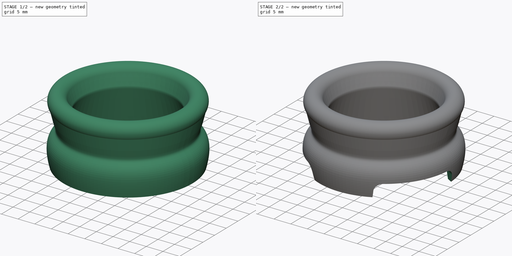
[diagram: build sequence overview — one tinted view per stage of 2, left to right]
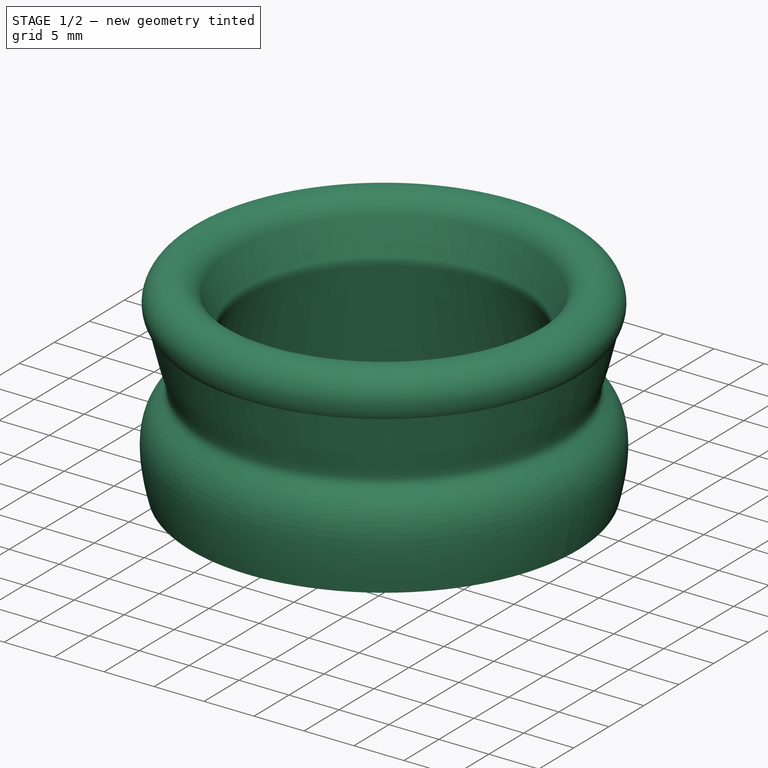
[diagram: stage 1 of 2 — iso view after this stage's code; geometry added in this stage tinted green]
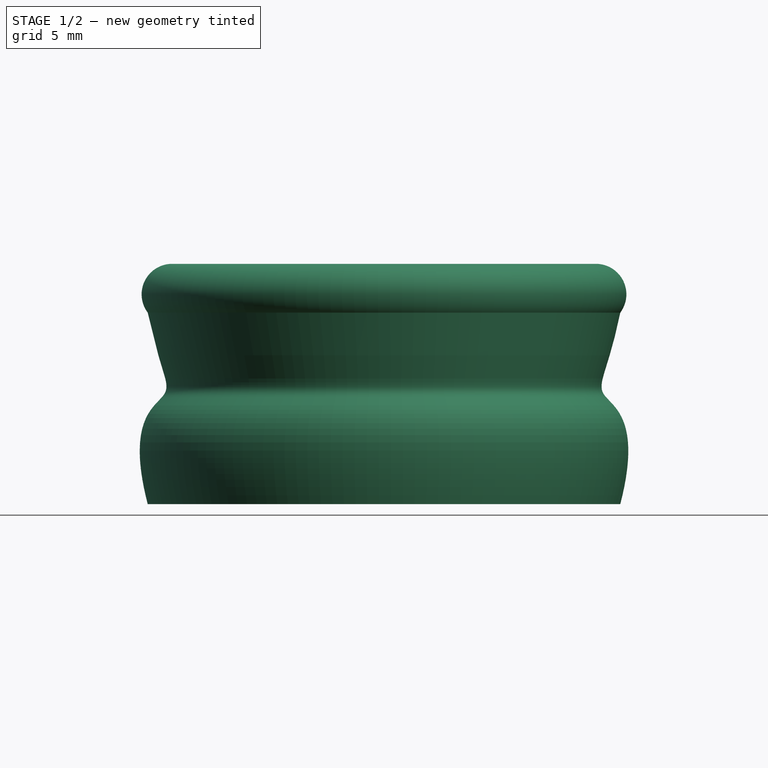
[diagram: stage 1 of 2 — front view after this stage's code; geometry added in this stage tinted green]
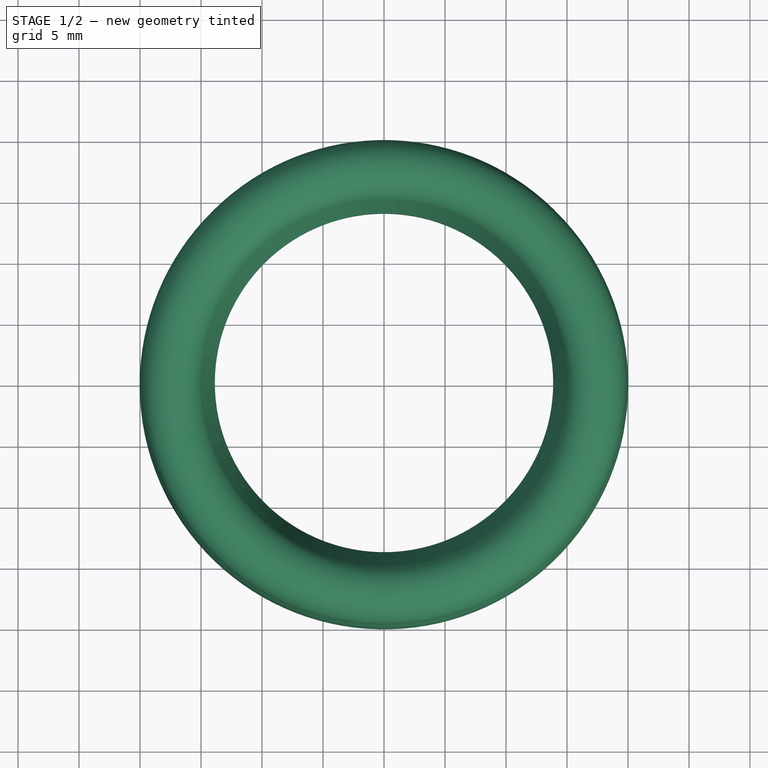
[diagram: stage 1 of 2 — top view after this stage's code; geometry added in this stage tinted green]
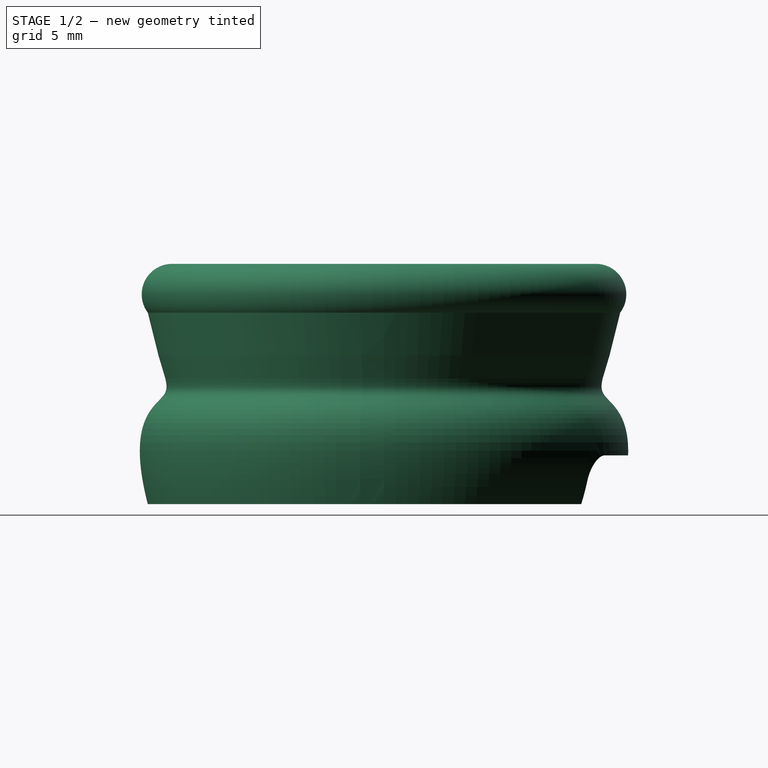
[diagram: stage 1 of 2 — right view after this stage's code; geometry added in this stage tinted green]
FCSTD DOCUMENT  (FreeCAD 0.20R27319 (Git))
Label: Egg Stand
License: All rights reserved
LicenseURL: http://en.wikipedia.org/wiki/All_rights_reserved
objects: Sketcher::SketchObject×2, PartDesign::Revolution×1, PartDesign::Pocket×1, PartDesign::PolarPattern×1, PartDesign::Body×1
note: 8 computed .brp shape members not serialized (recipe doc carries the construction recipe); baked Part::Feature solids carry a one-line shape summary decoded from their .brp

FEATURE [Sketcher::SketchObject] Sketch
  FullyConstrained = false
  MapMode = 5
  Placement = pos=(0,0,0) rot=(1,0,0;1.5708rad)
  Support = -> [XZ_Plane]
  expr: Constraints[22] = .Constraints.Height * 0.8
  sketch-geometry (14):
    g0: LineSegment StartX=13.9476 StartY=14.8793 StartZ=0 EndX=15 EndY=18 EndZ=0
    g1: ArcOfCircle CenterX=17.3689 CenterY=17.2011 CenterZ=0 NormalX=0 NormalY=0 NormalZ=1 AngleXU=0 Radius=2.5 StartAngle=5.63968 EndAngle=9.09951
    g2: LineSegment StartX=17.8689 StartY=0 StartZ=0 EndX=19.3689 EndY=0 EndZ=0
    g3-g7: Circle x5 (B-spline internal-alignment scaffolding for g8; pole/knot coordinates omitted)
    g8: BSplineCurve PolesCount=5 KnotsCount=3 Degree=3 IsPeriodic=0
    g9: GeomPoint X=19.3689 Y=15.7011 Z=0
    g10: GeomPoint X=18.0689 Y=8.93909 Z=0
    g11: GeomPoint X=19.3689 Y=0 Z=0
    g12: LineSegment StartX=13.9252 StartY=13.9931 StartZ=0 EndX=17.8689 EndY=0 EndZ=0
    g13: ArcOfCircle CenterX=15.3689 CenterY=14.4 CenterZ=0 NormalX=0 NormalY=0 NormalZ=1 AngleXU=0 Radius=1.5 StartAngle=2.81632 EndAngle=3.4163
  constraints (27):
    c: PointOnObject(g2,g-1)
    c: Tangent(g0,g1) = 1.5708
    c: Vertical(g1,g2)
    c: Coincident(g8,g1)
    c: Weight(g3) = 1
    c: Equal(g3, g4-g7) x4
    c: Coincident(g8,g2)
    c: InternalAlignment(g3-g7 -> g8) x5
    c: InternalAlignment(g9,g8)
    c: InternalAlignment(g10,g8)
    c: InternalAlignment(g11,g8)
    c: Coincident(g12,g2)
    c: Tangent(g13,g0) = 1.5708
    c: Tangent(g13,g12) = -1.5708
    c: DistanceY(g-1,g0) = 18  'Height'
    c: DistanceY(g13) = 14.4
    c: Horizontal(g2)
    c: Radius(g13) = 1.5
    c: Radius(g1) = 2.5
    c: DistanceX(g13,g1) = 2
    c: DistanceX(g13,g2) = 2.5
    c: Distance(g2) = 1.5
    c: DistanceY(g2,g5) = 9
    c: DistanceX(g4,g1) = 1
    c: DistanceX(g5,g1) = 3
    c: DistanceX(g1,g6) = 1.8
    c: DistanceX(g0) = 15
FEATURE [PartDesign::Revolution] Revolution
  Angle = 360
  Axis = (0,2e-16,1)
  Base = (0,0,0)
  Placement = pos=(0,0,0) rot=(1,0,0;1.5708rad)
  Profile = -> Sketch
  ReferenceAxis = -> Sketch [V_Axis]
  Reversed = true
FEATURE [Sketcher::SketchObject] Sketch001
  FullyConstrained = false
  MapMode = 5
  Placement = pos=(0,0,0) rot=(1,0,0;1.5708rad)
  Support = -> [XZ_Plane]
  sketch-geometry (9):
    g0: LineSegment StartX=-10.6683 StartY=1.88581 StartZ=0 EndX=-10.6683 EndY=0 EndZ=0
    g1: LineSegment StartX=-10.6683 StartY=0 StartZ=0 EndX=10.6683 EndY=0 EndZ=0
    g2: LineSegment StartX=10.6683 StartY=0 StartZ=0 EndX=10.6683 EndY=1.88581 EndZ=0
    g3: LineSegment StartX=8.55407 StartY=4 StartZ=0 EndX=-8.55407 EndY=4 EndZ=0
    g4: GeomPoint X=0 Y=2 Z=0
    g5: ArcOfCircle CenterX=-8.55407 CenterY=1.88581 CenterZ=0 NormalX=0 NormalY=0 NormalZ=1 AngleXU=0 Radius=2.11419 StartAngle=1.5708 EndAngle=3.14159
    g6: GeomPoint X=-10.6683 Y=4 Z=0
    g7: ArcOfCircle CenterX=8.55407 CenterY=1.88581 CenterZ=0 NormalX=0 NormalY=0 NormalZ=1 AngleXU=0 Radius=2.11419 StartAngle=0 EndAngle=1.5708
    g8: GeomPoint X=10.6683 Y=4 Z=0
  constraints (19):
    c: Coincident(g0,g1)
    c: Coincident(g1,g2)
    c: Horizontal(g1)
    c: Horizontal(g3)
    c: Vertical(g0)
    c: Vertical(g2)
    c: Symmetric(g1,g6,g4)
    c: PointOnObject(g4,g-2)
    c: PointOnObject(g1,g-1)
    c: Distance(g0,g6) = 4
    c: PointOnObject(g6,g0)
    c: PointOnObject(g6,g3)
    c: Tangent(g0,g5) = -1.5708
    c: Tangent(g3,g5) = -1.5708
    c: PointOnObject(g8,g2)
    c: PointOnObject(g8,g3)
    c: Tangent(g2,g7) = -1.5708
    c: Tangent(g3,g7) = -1.5708
    c: Equal(g5,g7)
FEATURE [PartDesign::Pocket] Pocket
  BaseFeature = -> Revolution
  Direction = (0,1,-2e-16)
  Length = 5
  Length2 = 5
  Placement = pos=(0,0,0) rot=(1,0,0;1.5708rad)
  Profile = -> Sketch001
  ReferenceAxis = -> Sketch001 [N_Axis]
  Type = 1
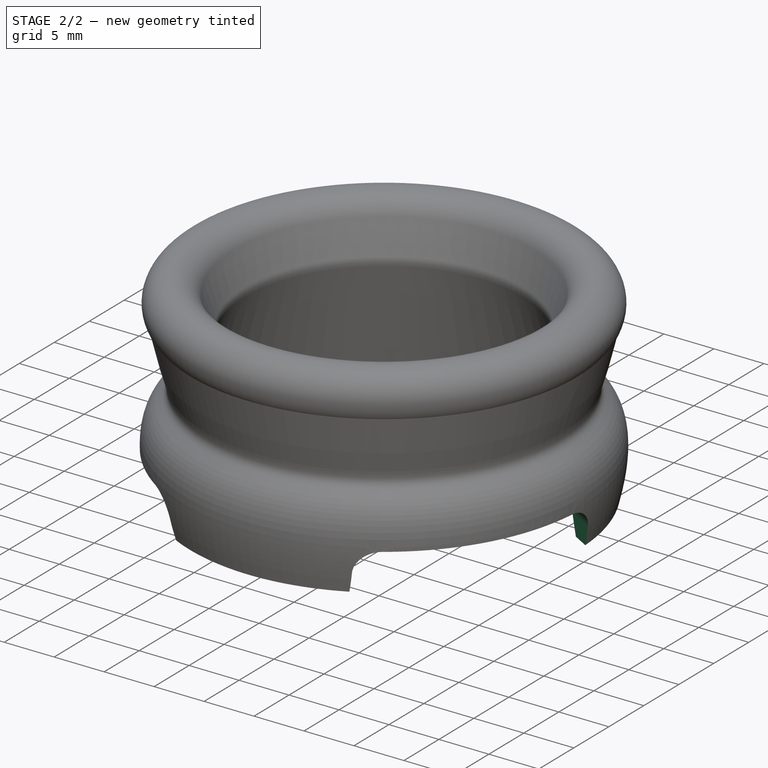
[diagram: stage 2 of 2 — iso view after this stage's code; geometry added in this stage tinted green]
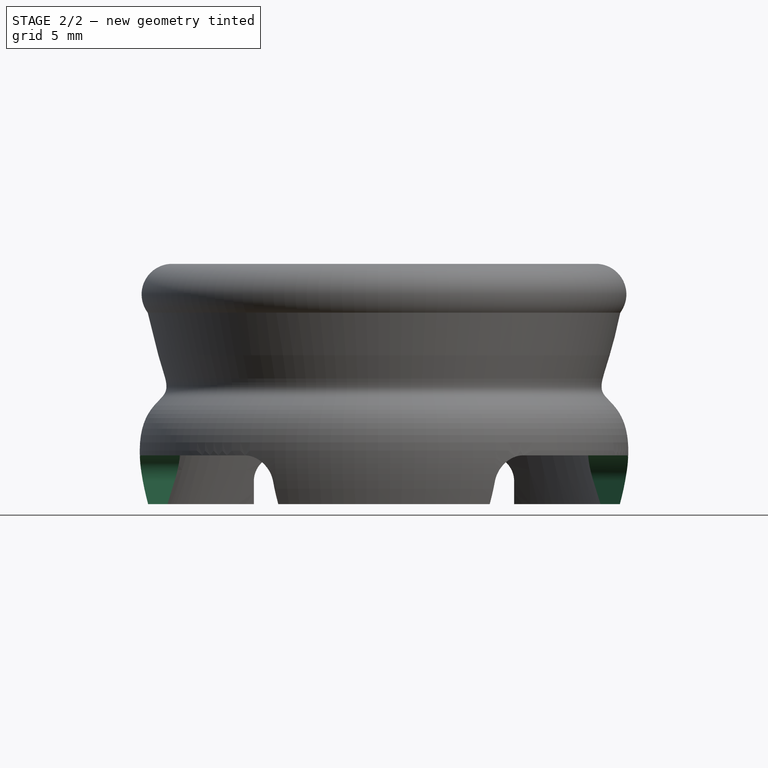
[diagram: stage 2 of 2 — front view after this stage's code; geometry added in this stage tinted green]
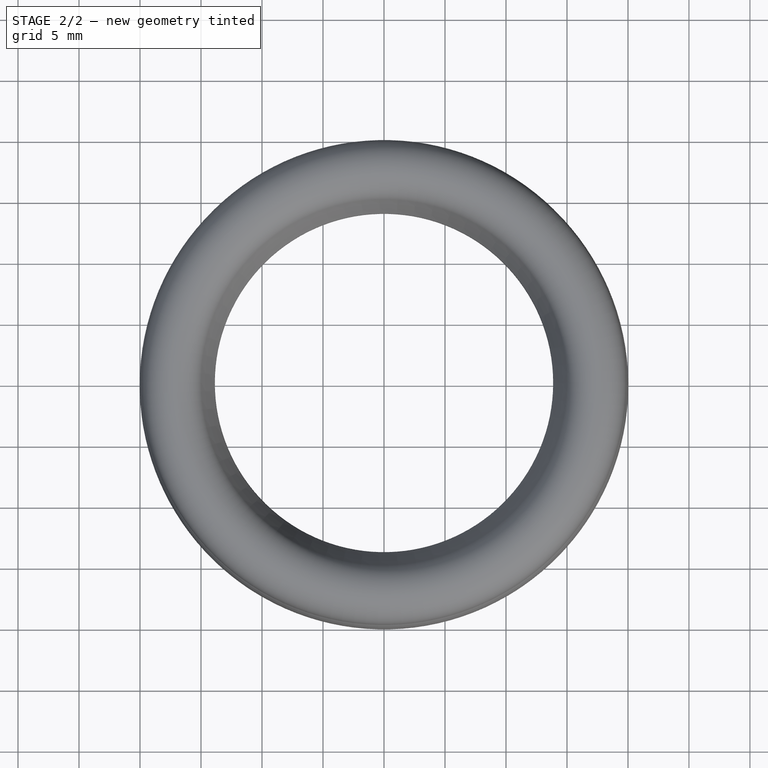
[diagram: stage 2 of 2 — top view after this stage's code; geometry added in this stage tinted green]
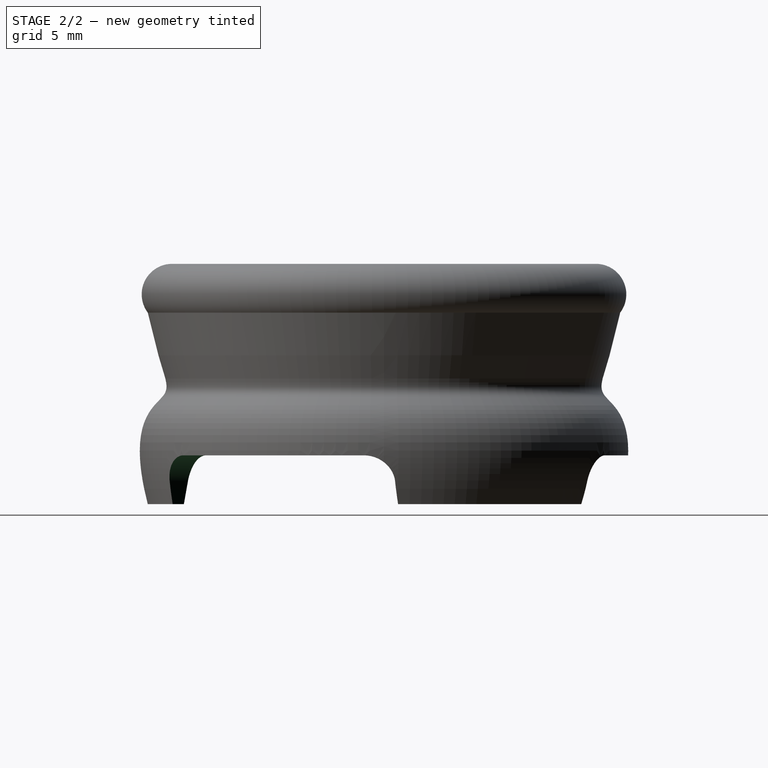
[diagram: stage 2 of 2 — right view after this stage's code; geometry added in this stage tinted green]
FEATURE [PartDesign::PolarPattern] PolarPattern
  Angle = 360
  Axis = -> Z_Axis
  BaseFeature = -> Pocket
  Occurrences = 3
  Originals = -> [Pocket]
  Overlap = 0
  Placement = pos=(0,0,0) rot=(1,0,0;1.5708rad)
FEATURE [PartDesign::Body] Body
  Group = -> [Sketch,Revolution,Sketch001,Pocket,PolarPattern]
  Origin = -> Origin
  Tip = -> PolarPattern
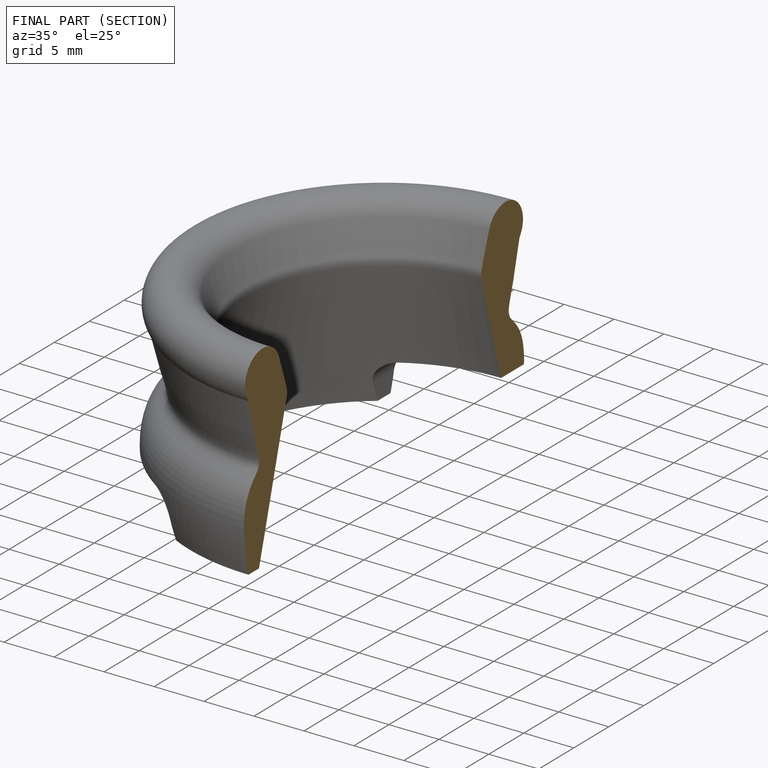
[diagram: finished part — half-section view (interior)]
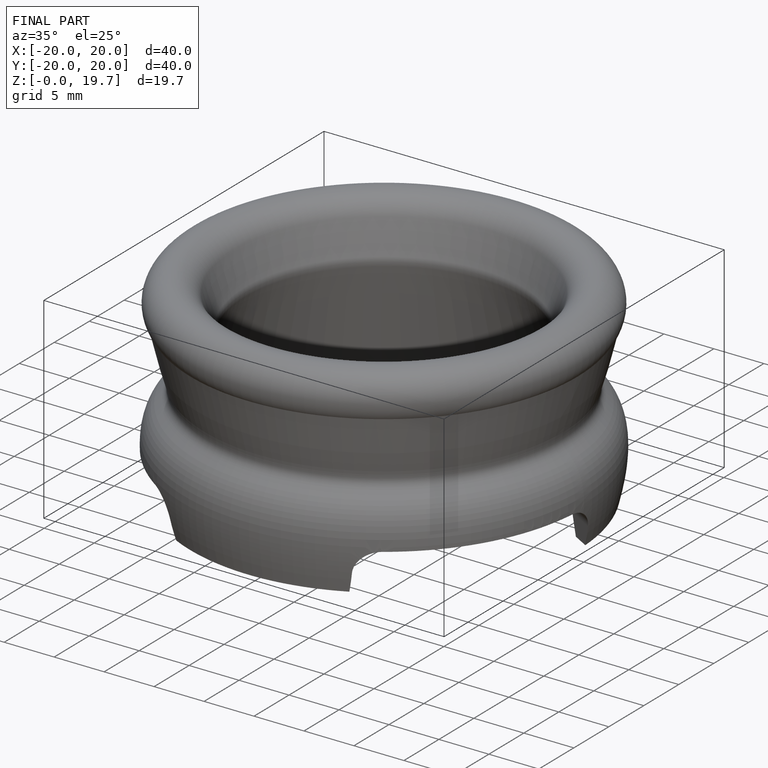
[diagram: finished part — iso view with bounding-box wireframe]
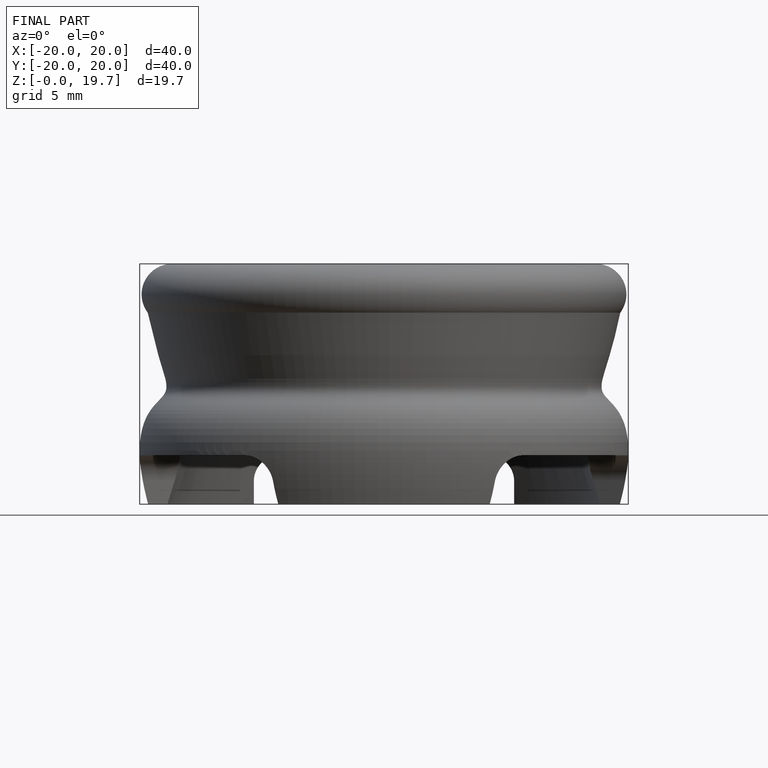
[diagram: finished part — front view with bounding-box wireframe]
